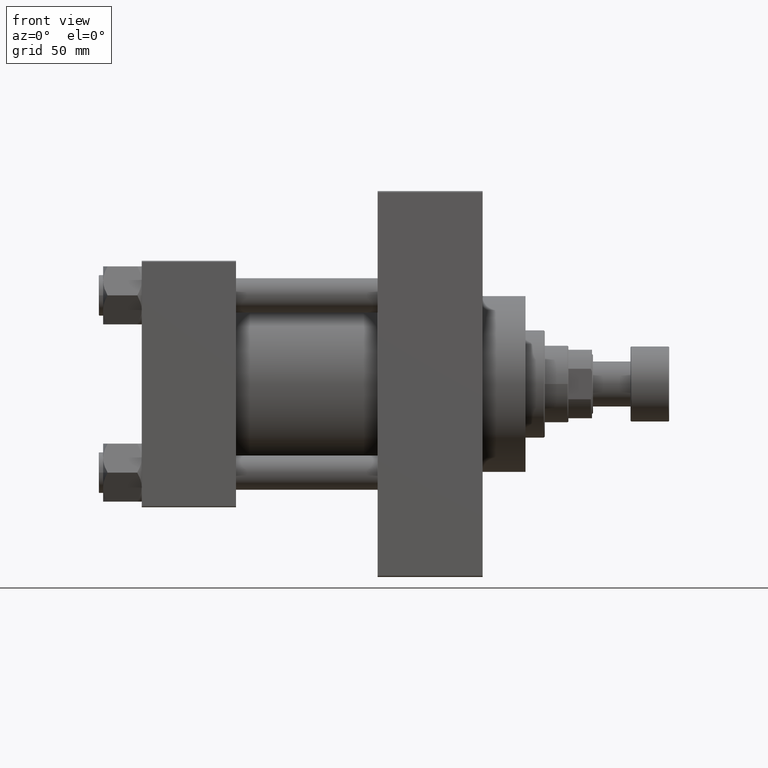
[diagram: clean part render]
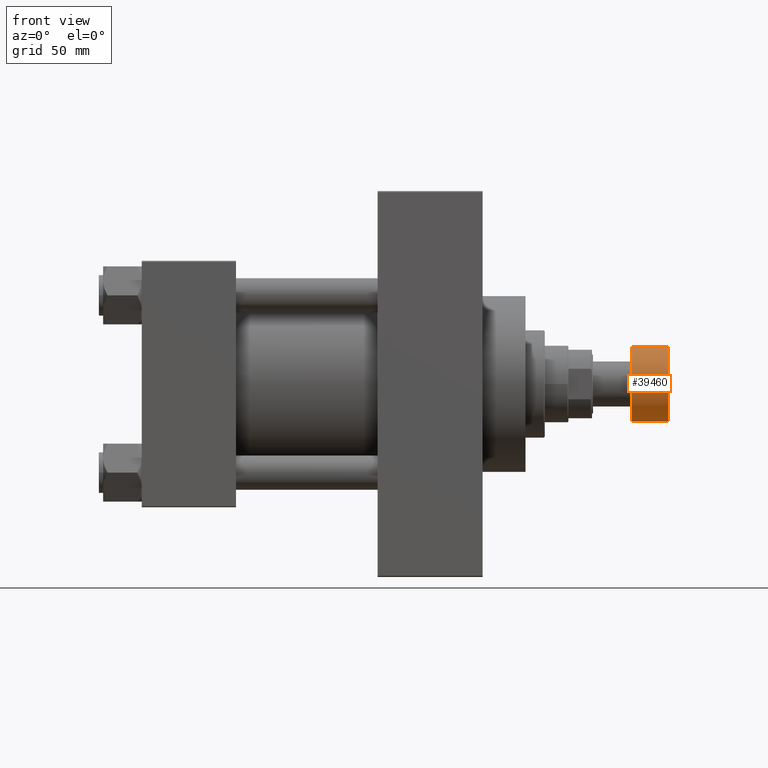
[diagram: same view with one face highlighted and labeled with its STEP entity id]
A machine part, front view. The second image highlights one B-rep face of the part: STEP entity #39460.
In plain terms, the highlighted cylindrical surface (partial cylindrical patch) has radius 17.5 mm, axis along (1, 0, 0).
Its self-contained STEP definition (entity closure, byte-faithful):
#147 = DIRECTION ( 'NONE',  ( 0.000000000000000000, 0.000000000000000000, 1.000000000000000000 ) ) ;
#637 = VECTOR ( 'NONE', #9436, 1000.000000000000000 ) ;
#1283 = CARTESIAN_POINT ( 'NONE',  ( -17.50000000000000355, 2.143131898507868643E-15, -0.5000000000000004441 ) ) ;
#3030 = VERTEX_POINT ( 'NONE', #40355 ) ;
#3607 = DIRECTION ( 'NONE',  ( 1.000000000000000000, 0.000000000000000000, 0.000000000000000000 ) ) ;
#4848 = VERTEX_POINT ( 'NONE', #1283 ) ;
#5715 = CARTESIAN_POINT ( 'NONE',  ( 0.000000000000000000, 0.000000000000000000, -18.00000000000000000 ) ) ;
#6361 = DIRECTION ( 'NONE',  ( 1.000000000000000000, 0.000000000000000000, 0.000000000000000000 ) ) ;
#6758 = CIRCLE ( 'NONE', #19199, 17.50000000000000355 ) ;
#9436 = DIRECTION ( 'NONE',  ( 0.000000000000000000, 0.000000000000000000, 1.000000000000000000 ) ) ;
#9674 = CARTESIAN_POINT ( 'NONE',  ( -17.50000000000000355, 2.143131898507868643E-15, -18.00000000000000000 ) ) ;
#9919 = AXIS2_PLACEMENT_3D ( 'NONE', #5715, #21056, #13035 ) ;
#10677 = DIRECTION ( 'NONE',  ( -0.000000000000000000, -0.000000000000000000, -1.000000000000000000 ) ) ;
#11119 = EDGE_CURVE ( 'NONE', #3030, #4848, #44078, .T. ) ;
#13035 = DIRECTION ( 'NONE',  ( 1.000000000000000000, 0.000000000000000000, 0.000000000000000000 ) ) ;
#13490 = VECTOR ( 'NONE', #147, 1000.000000000000000 ) ;
#13881 = ORIENTED_EDGE ( 'NONE', *, *, #11119, .T. ) ;
#14004 = EDGE_CURVE ( 'NONE', #28771, #4848, #46419, .T. ) ;
#14570 = CARTESIAN_POINT ( 'NONE',  ( 0.000000000000000000, 0.000000000000000000, -0.5000000000000004441 ) ) ;
#15284 = VERTEX_POINT ( 'NONE', #33303 ) ;
#15736 = CARTESIAN_POINT ( 'NONE',  ( 17.50000000000000355, 0.000000000000000000, -18.00000000000000000 ) ) ;
#19199 = AXIS2_PLACEMENT_3D ( 'NONE', #30983, #45827, #6361 ) ;
#21056 = DIRECTION ( 'NONE',  ( 0.000000000000000000, 0.000000000000000000, 1.000000000000000000 ) ) ;
#26631 = EDGE_CURVE ( 'NONE', #15284, #3030, #44706, .T. ) ;
#27893 = FACE_OUTER_BOUND ( 'NONE', #36273, .T. ) ;
#28771 = VERTEX_POINT ( 'NONE', #41014 ) ;
#30983 = CARTESIAN_POINT ( 'NONE',  ( 0.000000000000000000, 0.000000000000000000, -17.49999999999999645 ) ) ;
#32359 = ORIENTED_EDGE ( 'NONE', *, *, #14004, .F. ) ;
#33303 = CARTESIAN_POINT ( 'NONE',  ( 17.50000000000000355, 0.000000000000000000, -17.49999999999999645 ) ) ;
#36273 = EDGE_LOOP ( 'NONE', ( #32359, #47023, #39611, #13881 ) ) ;
#38572 = EDGE_CURVE ( 'NONE', #28771, #15284, #6758, .T. ) ;
#39460 = ADVANCED_FACE ( 'NONE', ( #27893 ), #46370, .T. ) ;
#39611 = ORIENTED_EDGE ( 'NONE', *, *, #26631, .T. ) ;
#40355 = CARTESIAN_POINT ( 'NONE',  ( 17.50000000000000355, 0.000000000000000000, -0.5000000000000004441 ) ) ;
#41014 = CARTESIAN_POINT ( 'NONE',  ( -17.50000000000000355, 2.143131898507868643E-15, -17.49999999999999645 ) ) ;
#42562 = AXIS2_PLACEMENT_3D ( 'NONE', #14570, #10677, #3607 ) ;
#44078 = CIRCLE ( 'NONE', #42562, 17.50000000000000355 ) ;
#44706 = LINE ( 'NONE', #15736, #13490 ) ;
#45827 = DIRECTION ( 'NONE',  ( 0.000000000000000000, 0.000000000000000000, 1.000000000000000000 ) ) ;
#46370 = CYLINDRICAL_SURFACE ( 'NONE', #9919, 17.50000000000000355 ) ;
#46419 = LINE ( 'NONE', #9674, #637 ) ;
#47023 = ORIENTED_EDGE ( 'NONE', *, *, #38572, .T. ) ;